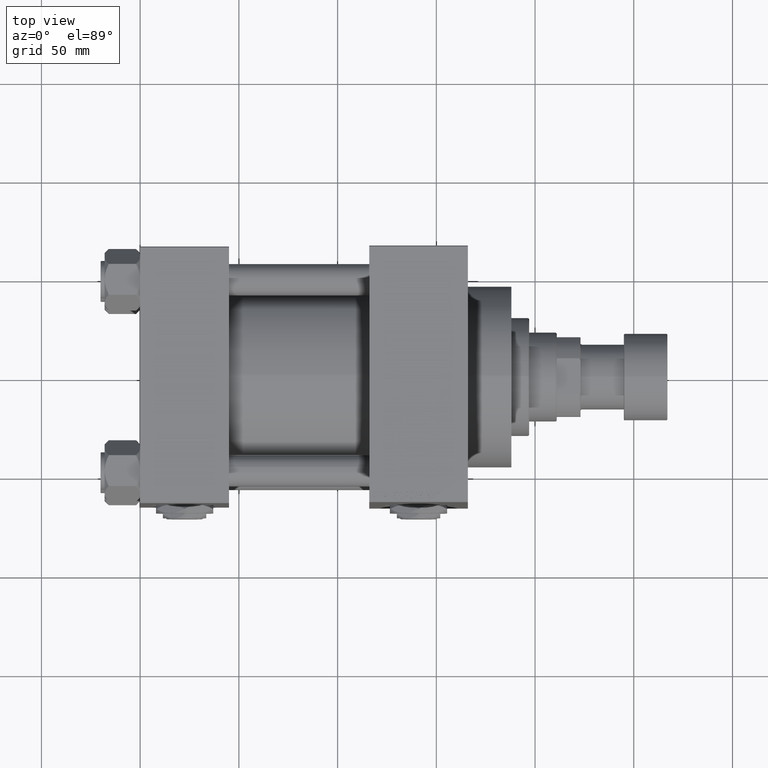
[diagram: clean part render]
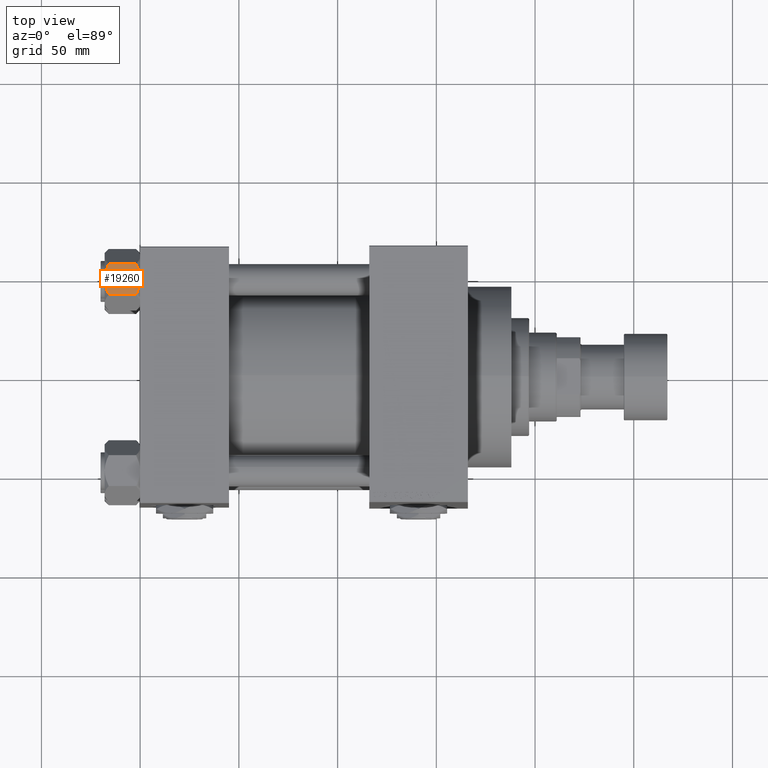
[diagram: same view with one face highlighted and labeled with its STEP entity id]
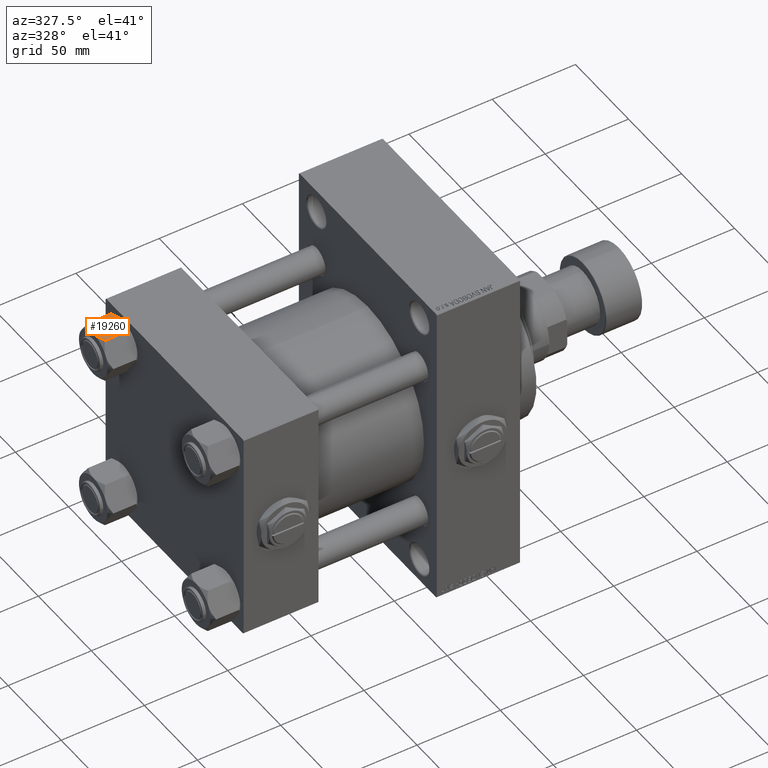
[diagram: same view with one face highlighted and labeled with its STEP entity id]
A machine part, top view. The second image highlights one B-rep face of the part: STEP entity #19260.
A second angle (auxiliary view) of the same face is appended — the face is thin or edge-on in the first view.
In plain terms, the highlighted planar face has unit normal (0, -0, -1).
Its self-contained STEP definition (entity closure, byte-faithful):
#107 = CARTESIAN_POINT ( 'NONE',  ( -7.622943475354647447, -13.52731680711293727, -16.00000000000000000 ) ) ;
#152 = EDGE_CURVE ( 'NONE', #23752, #47391, #29946, .T. ) ;
#635 = LINE ( 'NONE', #35430, #35360 ) ;
#1118 = DIRECTION ( 'NONE',  ( -1.000000000000000000, -2.221156819432531199E-16, 0.000000000000000000 ) ) ;
#3021 = CARTESIAN_POINT ( 'NONE',  ( 7.810000000000002274, -13.52731680711293372, -16.00000000000000000 ) ) ;
#3426 = CARTESIAN_POINT ( 'NONE',  ( -7.030888348548060662, -13.52731680711294082, -1.709337883550297699 ) ) ;
#3890 = DIRECTION ( 'NONE',  ( 1.000000000000000000, 2.221156819432531199E-16, -0.000000000000000000 ) ) ;
#4439 = CARTESIAN_POINT ( 'NONE',  ( 5.184073258379408244, -13.52731680711293372, -0.9481437906500832513 ) ) ;
#4684 = CARTESIAN_POINT ( 'NONE',  ( 2.644243758052992277, -13.52731680711293372, -0.2408281198023969893 ) ) ;
#4941 = CARTESIAN_POINT ( 'NONE',  ( 7.810000000000002274, -13.52731680711293372, -18.00000000000000000 ) ) ;
#6727 = ORIENTED_EDGE ( 'NONE', *, *, #44207, .F. ) ;
#7098 = EDGE_CURVE ( 'NONE', #21739, #13370, #19521, .T. ) ;
#7485 = CARTESIAN_POINT ( 'NONE',  ( -0.3330234424833808937, -13.52731680711293372, -18.00000000000000711 ) ) ;
#8161 = CARTESIAN_POINT ( 'NONE',  ( 3.004629197474319246E-15, -13.52731680711293727, -18.00000000000000000 ) ) ;
#8243 = CARTESIAN_POINT ( 'NONE',  ( 0.3330234424833860007, -13.52731680711293727, 1.736982230502816853E-15 ) ) ;
#8407 = CARTESIAN_POINT ( 'NONE',  ( 2.638177715023113379, -13.52731680711293549, -17.79984593233011481 ) ) ;
#8438 = CARTESIAN_POINT ( 'NONE',  ( 7.810000000000002274, -13.52731680711293372, -1.999999999999998224 ) ) ;
#9168 = B_SPLINE_CURVE_WITH_KNOTS ( 'NONE', 3,
 ( #30610, #3426, #33656, #49113, #14341, #29849, #45309, #10543 ),
 .UNSPECIFIED., .F., .F.,
 ( 4, 2, 2, 4 ),
 ( 0.01980594295952729095, 0.02179054093496183425, 0.02377513891039637756, 0.02774433486126546416 ),
 .UNSPECIFIED. ) ;
#9793 = EDGE_CURVE ( 'NONE', #13370, #23752, #10765, .T. ) ;
#10543 = CARTESIAN_POINT ( 'NONE',  ( 3.004629197474319246E-15, -13.52731680711293727, 0.000000000000000000 ) ) ;
#10765 = B_SPLINE_CURVE_WITH_KNOTS ( 'NONE', 3,
 ( #14839, #7485, #46574, #30354, #34655, #50132, #15351, #30859, #46321, #11546, #34907, #107 ),
 .UNSPECIFIED., .F., .F.,
 ( 4, 2, 2, 2, 2, 4 ),
 ( 0.02774433486126545376, 0.02873404020403549225, 0.02972374554680553074, 0.03170315623234560426, 0.03368256691788568125, 0.03566197760342575823 ),
 .UNSPECIFIED. ) ;
#11546 = CARTESIAN_POINT ( 'NONE',  ( -6.422751913021825132, -13.52731680711293905, -16.56349088907410305 ) ) ;
#11966 = CARTESIAN_POINT ( 'NONE',  ( 4.553769687922309295, -13.52731680711293194, -17.26727080048548046 ) ) ;
#12605 = EDGE_CURVE ( 'NONE', #26771, #21739, #23554, .T. ) ;
#12996 = EDGE_CURVE ( 'NONE', #48215, #37552, #19968, .T. ) ;
#13370 = VERTEX_POINT ( 'NONE', #43389 ) ;
#14079 = EDGE_CURVE ( 'NONE', #50245, #33929, #50096, .T. ) ;
#14341 = CARTESIAN_POINT ( 'NONE',  ( -4.553769687922305742, -13.52731680711294082, -0.7327291995145158721 ) ) ;
#14500 = CARTESIAN_POINT ( 'NONE',  ( -7.809999999999999609, -13.52731680711293727, -1.999999999999998224 ) ) ;
#14839 = CARTESIAN_POINT ( 'NONE',  ( 3.004629197474319246E-15, -13.52731680711293727, -18.00000000000000000 ) ) ;
#15351 = CARTESIAN_POINT ( 'NONE',  ( -3.287826776903149728, -13.52731680711293727, -17.61954155462466076 ) ) ;
#15925 = DIRECTION ( 'NONE',  ( -1.000000000000000000, -2.221156819432531199E-16, 0.000000000000000000 ) ) ;
#16110 = CARTESIAN_POINT ( 'NONE',  ( 7.622943475354652776, -13.52731680711293372, -2.000000000000000000 ) ) ;
#18059 = ORIENTED_EDGE ( 'NONE', *, *, #7098, .F. ) ;
#18238 = CARTESIAN_POINT ( 'NONE',  ( -7.622943475354647447, -13.52731680711293727, -2.000000000000000000 ) ) ;
#18451 = CARTESIAN_POINT ( 'NONE',  ( -7.809999999999999609, -13.52731680711293727, -16.00000000000000000 ) ) ;
#18489 = VERTEX_POINT ( 'NONE', #41689 ) ;
#19260 = ADVANCED_FACE ( 'NONE', ( #20916 ), #36409, .F. ) ;
#19521 = B_SPLINE_CURVE_WITH_KNOTS ( 'NONE', 3,
 ( #20088, #27721, #47493, #43178, #11966, #8407, #35580, #8161 ),
 .UNSPECIFIED., .F., .F.,
 ( 4, 2, 2, 4 ),
 ( 0.01980594295952729095, 0.02179054093496183078, 0.02377513891039637062, 0.02774433486126545376 ),
 .UNSPECIFIED. ) ;
#19927 = CARTESIAN_POINT ( 'NONE',  ( 7.030203932307590442, -13.52731680711293727, -1.709001877891394017 ) ) ;
#19968 = B_SPLINE_CURVE_WITH_KNOTS ( 'NONE', 3,
 ( #31866, #8243, #23981, #47323, #39470, #4684, #42773, #20167, #4439, #47082, #19927, #16110 ),
 .UNSPECIFIED., .F., .F.,
 ( 4, 2, 2, 2, 2, 4 ),
 ( 0.02774433486126546416, 0.02873404020403550266, 0.02972374554680554115, 0.03170315623234561814, 0.03368256691788569512, 0.03566197760342577211 ),
 .UNSPECIFIED. ) ;
#20088 = CARTESIAN_POINT ( 'NONE',  ( 7.622943475354652776, -13.52731680711293372, -16.00000000000000000 ) ) ;
#20167 = CARTESIAN_POINT ( 'NONE',  ( 4.557734399832416905, -13.52731680711293016, -0.7341470174115138914 ) ) ;
#20423 = DIRECTION ( 'NONE',  ( -2.221156819432531199E-16, 1.000000000000000000, 0.000000000000000000 ) ) ;
#20455 = LINE ( 'NONE', #49878, #49190 ) ;
#20916 = FACE_OUTER_BOUND ( 'NONE', #38709, .T. ) ;
#21196 = EDGE_CURVE ( 'NONE', #47391, #50245, #20455, .T. ) ;
#21739 = VERTEX_POINT ( 'NONE', #44855 ) ;
#21953 = DIRECTION ( 'NONE',  ( -0.000000000000000000, -0.000000000000000000, 1.000000000000000000 ) ) ;
#22660 = ORIENTED_EDGE ( 'NONE', *, *, #21196, .F. ) ;
#22874 = ORIENTED_EDGE ( 'NONE', *, *, #12605, .F. ) ;
#23344 = DIRECTION ( 'NONE',  ( -1.000000000000000000, -2.221156819432531199E-16, 0.000000000000000000 ) ) ;
#23554 = LINE ( 'NONE', #31927, #49835 ) ;
#23691 = ORIENTED_EDGE ( 'NONE', *, *, #14079, .F. ) ;
#23752 = VERTEX_POINT ( 'NONE', #41451 ) ;
#23981 = CARTESIAN_POINT ( 'NONE',  ( 0.6693083573771232420, -13.52731680711293372, -0.01249333081107902900 ) ) ;
#26184 = ORIENTED_EDGE ( 'NONE', *, *, #12996, .F. ) ;
#26771 = VERTEX_POINT ( 'NONE', #30172 ) ;
#27721 = CARTESIAN_POINT ( 'NONE',  ( 7.030888348548065103, -13.52731680711293194, -16.29066211644969897 ) ) ;
#27724 = CARTESIAN_POINT ( 'NONE',  ( 3.004629197474319246E-15, -13.52731680711293727, 0.000000000000000000 ) ) ;
#27962 = ORIENTED_EDGE ( 'NONE', *, *, #48795, .T. ) ;
#28058 = LINE ( 'NONE', #32127, #28637 ) ;
#28444 = ORIENTED_EDGE ( 'NONE', *, *, #28901, .F. ) ;
#28637 = VECTOR ( 'NONE', #40218, 1000.000000000000000 ) ;
#28901 = EDGE_CURVE ( 'NONE', #37552, #18489, #635, .T. ) ;
#29849 = CARTESIAN_POINT ( 'NONE',  ( -2.638177715023105385, -13.52731680711294082, -0.2001540676698838062 ) ) ;
#29946 = LINE ( 'NONE', #3021, #38176 ) ;
#30172 = CARTESIAN_POINT ( 'NONE',  ( 7.810000000000002274, -13.52731680711293372, -16.00000000000000000 ) ) ;
#30354 = CARTESIAN_POINT ( 'NONE',  ( -1.333889873825130579, -13.52731680711293549, -17.93843358996560866 ) ) ;
#30610 = CARTESIAN_POINT ( 'NONE',  ( -7.622943475354647447, -13.52731680711293727, -2.000000000000000000 ) ) ;
#30859 = CARTESIAN_POINT ( 'NONE',  ( -4.557734399832409800, -13.52731680711293905, -17.26585298258849122 ) ) ;
#31105 = CARTESIAN_POINT ( 'NONE',  ( 7.622943475354652776, -13.52731680711293372, -2.000000000000000000 ) ) ;
#31866 = CARTESIAN_POINT ( 'NONE',  ( 3.004629197474319246E-15, -13.52731680711293727, 0.000000000000000000 ) ) ;
#31927 = CARTESIAN_POINT ( 'NONE',  ( 7.810000000000002274, -13.52731680711293372, -16.00000000000000000 ) ) ;
#32127 = CARTESIAN_POINT ( 'NONE',  ( 7.810000000000002274, -13.52731680711293372, -18.00000000000000000 ) ) ;
#32946 = AXIS2_PLACEMENT_3D ( 'NONE', #4941, #20423, #1118 ) ;
#33656 = CARTESIAN_POINT ( 'NONE',  ( -6.427364677720470709, -13.52731680711293727, -1.438506937155139109 ) ) ;
#33929 = VERTEX_POINT ( 'NONE', #18238 ) ;
#34655 = CARTESIAN_POINT ( 'NONE',  ( -1.663410456966171180, -13.52731680711293549, -17.90195050864300796 ) ) ;
#34907 = CARTESIAN_POINT ( 'NONE',  ( -7.030203932307581560, -13.52731680711293727, -16.29099812210860065 ) ) ;
#34938 = DIRECTION ( 'NONE',  ( 1.000000000000000000, 2.221156819432531199E-16, -0.000000000000000000 ) ) ;
#35360 = VECTOR ( 'NONE', #34938, 1000.000000000000000 ) ;
#35430 = CARTESIAN_POINT ( 'NONE',  ( 7.810000000000002274, -13.52731680711293372, -1.999999999999998224 ) ) ;
#35580 = CARTESIAN_POINT ( 'NONE',  ( 1.335584685993418619, -13.52731680711293372, -18.00000000000000355 ) ) ;
#36409 = PLANE ( 'NONE',  #32946 ) ;
#37552 = VERTEX_POINT ( 'NONE', #31105 ) ;
#38176 = VECTOR ( 'NONE', #23344, 1000.000000000000000 ) ;
#38709 = EDGE_LOOP ( 'NONE', ( #22874, #27962, #28444, #26184, #6727, #23691, #22660, #47741, #45663, #18059 ) ) ;
#39470 = CARTESIAN_POINT ( 'NONE',  ( 1.663410456966175843, -13.52731680711293372, -0.09804949135698878826 ) ) ;
#40218 = DIRECTION ( 'NONE',  ( -0.000000000000000000, -0.000000000000000000, 1.000000000000000000 ) ) ;
#41451 = CARTESIAN_POINT ( 'NONE',  ( -7.622943475354647447, -13.52731680711293727, -16.00000000000000000 ) ) ;
#41652 = VECTOR ( 'NONE', #3890, 1000.000000000000000 ) ;
#41689 = CARTESIAN_POINT ( 'NONE',  ( 7.810000000000002274, -13.52731680711293372, -1.999999999999998224 ) ) ;
#42773 = CARTESIAN_POINT ( 'NONE',  ( 3.287826776903156833, -13.52731680711293194, -0.3804584453753362960 ) ) ;
#43178 = CARTESIAN_POINT ( 'NONE',  ( 5.189513245496335969, -13.52731680711293194, -17.04988915682674033 ) ) ;
#43389 = CARTESIAN_POINT ( 'NONE',  ( 3.004629197474319246E-15, -13.52731680711293727, -18.00000000000000000 ) ) ;
#44207 = EDGE_CURVE ( 'NONE', #33929, #48215, #9168, .T. ) ;
#44855 = CARTESIAN_POINT ( 'NONE',  ( 7.622943475354652776, -13.52731680711293372, -16.00000000000000000 ) ) ;
#45309 = CARTESIAN_POINT ( 'NONE',  ( -1.335584685993413956, -13.52731680711294082, 1.666960840196463265E-15 ) ) ;
#45663 = ORIENTED_EDGE ( 'NONE', *, *, #9793, .F. ) ;
#46321 = CARTESIAN_POINT ( 'NONE',  ( -5.184073258379402027, -13.52731680711293905, -17.05185620934992130 ) ) ;
#46574 = CARTESIAN_POINT ( 'NONE',  ( -0.6693083573771178019, -13.52731680711293727, -17.98750666918892449 ) ) ;
#47082 = CARTESIAN_POINT ( 'NONE',  ( 6.422751913021828685, -13.52731680711293549, -1.436509110925896948 ) ) ;
#47323 = CARTESIAN_POINT ( 'NONE',  ( 1.333889873825135686, -13.52731680711293549, -0.06156641003439144999 ) ) ;
#47391 = VERTEX_POINT ( 'NONE', #18451 ) ;
#47493 = CARTESIAN_POINT ( 'NONE',  ( 6.427364677720476926, -13.52731680711293549, -16.56149306284486755 ) ) ;
#47741 = ORIENTED_EDGE ( 'NONE', *, *, #152, .F. ) ;
#48215 = VERTEX_POINT ( 'NONE', #27724 ) ;
#48795 = EDGE_CURVE ( 'NONE', #26771, #18489, #28058, .T. ) ;
#49113 = CARTESIAN_POINT ( 'NONE',  ( -5.189513245496330640, -13.52731680711293905, -0.9501108431732574466 ) ) ;
#49190 = VECTOR ( 'NONE', #21953, 1000.000000000000000 ) ;
#49835 = VECTOR ( 'NONE', #15925, 1000.000000000000000 ) ;
#49878 = CARTESIAN_POINT ( 'NONE',  ( -7.809999999999999609, -13.52731680711293727, -18.00000000000000000 ) ) ;
#50096 = LINE ( 'NONE', #8438, #41652 ) ;
#50132 = CARTESIAN_POINT ( 'NONE',  ( -2.644243758052987836, -13.52731680711293549, -17.75917188019760218 ) ) ;
#50245 = VERTEX_POINT ( 'NONE', #14500 ) ;